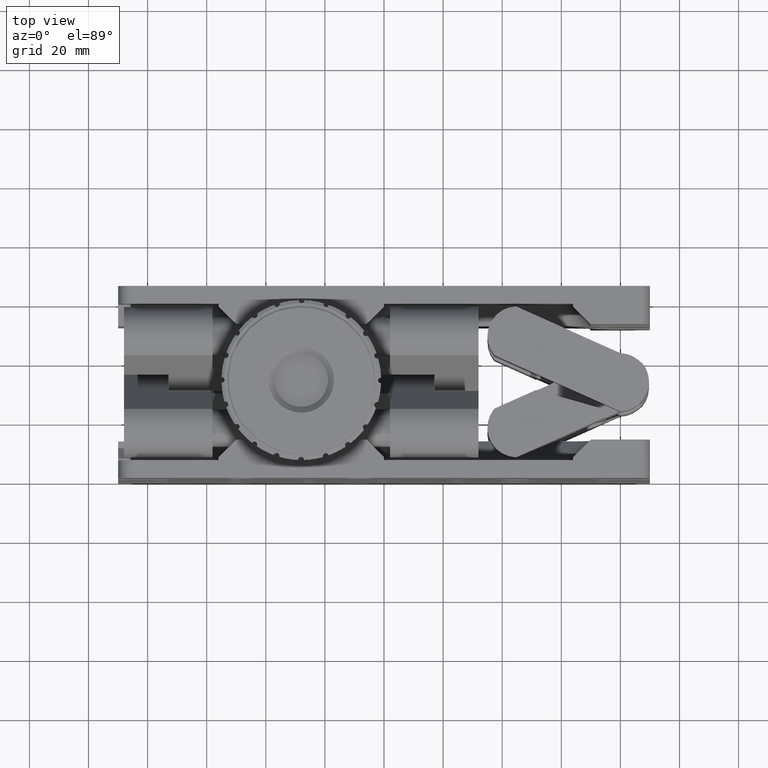
[diagram: clean part render]
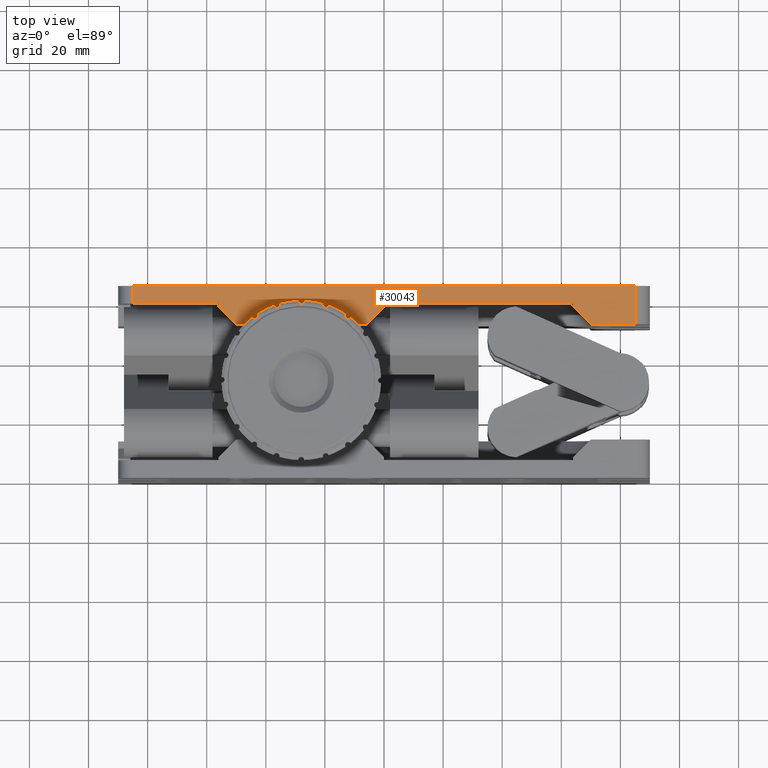
[diagram: same view with one face highlighted and labeled with its STEP entity id]
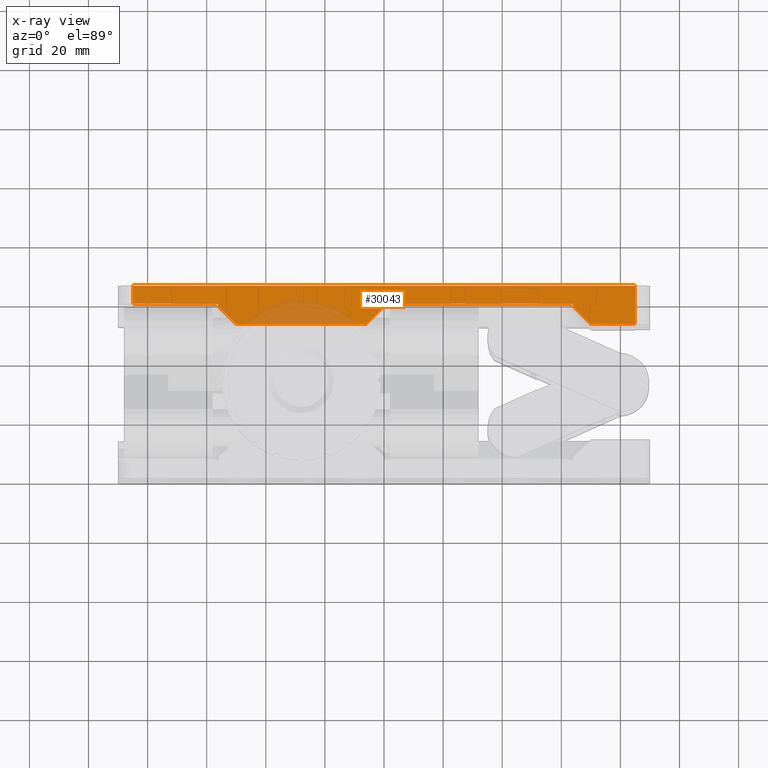
[diagram: x-ray of the same camera — body ghosted, the highlighted face saturated]
A machine part, top view. The second image highlights one B-rep face of the part: STEP entity #30043.
The next image is the same camera in x-ray: the body ghosted, the highlighted face saturated — about 14% of this face is hidden behind the body in this view.
In plain terms, the highlighted planar face has unit normal (-0, -0, -1).
Its self-contained STEP definition (entity closure, byte-faithful):
#239 = VECTOR ( 'NONE', #9025, 1000.000000000000000 ) ;
#748 = VECTOR ( 'NONE', #31106, 1000.000000000000000 ) ;
#963 = EDGE_LOOP ( 'NONE', ( #61446, #8612, #39062, #28126, #61381, #48641, #47163, #1784, #13380, #44782, #51101, #24269, #35780 ) ) ;
#1177 = CARTESIAN_POINT ( 'NONE',  ( 84.99999999999994300, 52.00000000000000700, 59.99999999999984400 ) ) ;
#1784 = ORIENTED_EDGE ( 'NONE', *, *, #13980, .F. ) ;
#2953 = VERTEX_POINT ( 'NONE', #1177 ) ;
#3941 = LINE ( 'NONE', #21134, #34423 ) ;
#3943 = VECTOR ( 'NONE', #40256, 1000.000000000000000 ) ;
#4068 = LINE ( 'NONE', #38791, #51248 ) ;
#4636 = LINE ( 'NONE', #29081, #39622 ) ;
#5387 = VERTEX_POINT ( 'NONE', #14525 ) ;
#5450 = CARTESIAN_POINT ( 'NONE',  ( 63.99999999999992900, 59.00000000000000700, 59.99999999999986500 ) ) ;
#5475 = EDGE_CURVE ( 'NONE', #60004, #26138, #3941, .T. ) ;
#7445 = CARTESIAN_POINT ( 'NONE',  ( 70.00000000000000000, 52.00000000000000700, 59.99999999999985100 ) ) ;
#8612 = ORIENTED_EDGE ( 'NONE', *, *, #34870, .T. ) ;
#9025 = DIRECTION ( 'NONE',  ( -1.000000000000000000, 2.168404344970952500E-019, -8.163404592832018200E-016 ) ) ;
#9397 = DIRECTION ( 'NONE',  ( -1.000000000000000000, 2.168404344971019900E-019, 1.541976423090491700E-016 ) ) ;
#10535 = VERTEX_POINT ( 'NONE', #38683 ) ;
#10992 = LINE ( 'NONE', #44580, #15546 ) ;
#10997 = VERTEX_POINT ( 'NONE', #48931 ) ;
#11834 = LINE ( 'NONE', #38298, #18712 ) ;
#12138 = LINE ( 'NONE', #59878, #748 ) ;
#12387 = EDGE_CURVE ( 'NONE', #55742, #58027, #4636, .T. ) ;
#13359 = CARTESIAN_POINT ( 'NONE',  ( -84.99999999999998600, 59.00000000000000700, 59.99999999999983700 ) ) ;
#13380 = ORIENTED_EDGE ( 'NONE', *, *, #41794, .F. ) ;
#13980 = EDGE_CURVE ( 'NONE', #28929, #36897, #12138, .T. ) ;
#14183 = DIRECTION ( 'NONE',  ( 0.7071067811865474600, -0.7071067811865474600, 4.906538933386765800E-018 ) ) ;
#14525 = CARTESIAN_POINT ( 'NONE',  ( 63.99999999999992900, 59.00000000000000700, 59.99999999999986500 ) ) ;
#14996 = DIRECTION ( 'NONE',  ( 2.168404344971008900E-019, 1.000000000000000000, -6.938893903907193700E-018 ) ) ;
#15313 = LINE ( 'NONE', #46558, #32913 ) ;
#15546 = VECTOR ( 'NONE', #14996, 1000.000000000000000 ) ;
#16172 = DIRECTION ( 'NONE',  ( -1.000000000000000000, 2.168404344971008900E-019, 1.805559322863017600E-035 ) ) ;
#18712 = VECTOR ( 'NONE', #47401, 1000.000000000000000 ) ;
#19042 = CARTESIAN_POINT ( 'NONE',  ( 64.00000000000001400, 58.00000000000000700, 59.99999999999985100 ) ) ;
#19459 = EDGE_CURVE ( 'NONE', #10997, #32844, #52024, .T. ) ;
#20135 = DIRECTION ( 'NONE',  ( -2.168404344971008900E-019, -1.000000000000000000, 6.938893903907193700E-018 ) ) ;
#20228 = EDGE_CURVE ( 'NONE', #10535, #58027, #15313, .T. ) ;
#20893 = CARTESIAN_POINT ( 'NONE',  ( 63.99999999999992900, 59.00000000000000700, 59.99999999999986500 ) ) ;
#21134 = CARTESIAN_POINT ( 'NONE',  ( 64.00000000000001400, 58.00000000000000700, 59.99999999999985100 ) ) ;
#24269 = ORIENTED_EDGE ( 'NONE', *, *, #44679, .F. ) ;
#25153 = DIRECTION ( 'NONE',  ( 0.7071067811865466800, -0.7071067811865483500, 4.906538933386772000E-018 ) ) ;
#25651 = LINE ( 'NONE', #37983, #63026 ) ;
#26138 = VERTEX_POINT ( 'NONE', #7445 ) ;
#26515 = PLANE ( 'NONE',  #57868 ) ;
#28109 = DIRECTION ( 'NONE',  ( -2.168404344971008900E-019, -1.000000000000000000, 6.938893903907193700E-018 ) ) ;
#28126 = ORIENTED_EDGE ( 'NONE', *, *, #31673, .T. ) ;
#28810 = FACE_OUTER_BOUND ( 'NONE', #963, .T. ) ;
#28929 = VERTEX_POINT ( 'NONE', #55310 ) ;
#29081 = CARTESIAN_POINT ( 'NONE',  ( -49.99999999999997900, 52.00000000000000700, 59.99999999999985100 ) ) ;
#30043 = ADVANCED_FACE ( 'NONE', ( #28810 ), #26515, .F. ) ;
#30664 = CARTESIAN_POINT ( 'NONE',  ( -84.99999999999998600, 52.00000000000000700, 59.99999999999987200 ) ) ;
#31106 = DIRECTION ( 'NONE',  ( -2.168404344971008900E-019, -1.000000000000000000, 6.938893903907193700E-018 ) ) ;
#31494 = VECTOR ( 'NONE', #16172, 1000.000000000000000 ) ;
#31673 = EDGE_CURVE ( 'NONE', #10997, #55742, #38564, .T. ) ;
#32502 = CARTESIAN_POINT ( 'NONE',  ( -55.99999999999997900, 58.00000000000000000, 59.99999999999985100 ) ) ;
#32844 = VERTEX_POINT ( 'NONE', #13359 ) ;
#32913 = VECTOR ( 'NONE', #45914, 1000.000000000000000 ) ;
#32981 = CARTESIAN_POINT ( 'NONE',  ( -84.99999999999998600, 65.00000000000000000, 59.99999999999987200 ) ) ;
#33877 = LINE ( 'NONE', #5450, #38479 ) ;
#34423 = VECTOR ( 'NONE', #25153, 1000.000000000000000 ) ;
#34870 = EDGE_CURVE ( 'NONE', #36031, #32844, #48846, .T. ) ;
#35350 = LINE ( 'NONE', #20893, #31494 ) ;
#35780 = ORIENTED_EDGE ( 'NONE', *, *, #46929, .T. ) ;
#36031 = VERTEX_POINT ( 'NONE', #32981 ) ;
#36146 = DIRECTION ( 'NONE',  ( -1.541976423090491700E-016, -6.938893903907159000E-018, -1.000000000000000000 ) ) ;
#36897 = VERTEX_POINT ( 'NONE', #41136 ) ;
#37733 = VERTEX_POINT ( 'NONE', #51737 ) ;
#37832 = VECTOR ( 'NONE', #28109, 1000.000000000000000 ) ;
#37983 = CARTESIAN_POINT ( 'NONE',  ( -90.00000000000000000, 65.00000000000000000, 59.99999999999987200 ) ) ;
#38298 = CARTESIAN_POINT ( 'NONE',  ( 1.772960017939621800E-014, 58.00000000000000700, 59.99999999999985800 ) ) ;
#38415 = EDGE_CURVE ( 'NONE', #36897, #10535, #11834, .T. ) ;
#38479 = VECTOR ( 'NONE', #20135, 1000.000000000000000 ) ;
#38564 = LINE ( 'NONE', #47272, #37832 ) ;
#38683 = CARTESIAN_POINT ( 'NONE',  ( -5.999999999999974200, 52.00000000000000700, 59.99999999999986500 ) ) ;
#38791 = CARTESIAN_POINT ( 'NONE',  ( -90.00000000000000000, 52.00000000000000700, 59.99999999999987200 ) ) ;
#39062 = ORIENTED_EDGE ( 'NONE', *, *, #19459, .F. ) ;
#39622 = VECTOR ( 'NONE', #14183, 1000.000000000000100 ) ;
#40256 = DIRECTION ( 'NONE',  ( -2.168404344971008900E-019, -1.000000000000000000, 6.938893903907193700E-018 ) ) ;
#40616 = DIRECTION ( 'NONE',  ( 1.000000000000000000, -2.168404344971019500E-019, -1.541976423090491700E-016 ) ) ;
#41136 = CARTESIAN_POINT ( 'NONE',  ( 1.772960017939621800E-014, 58.00000000000000700, 59.99999999999985800 ) ) ;
#41794 = EDGE_CURVE ( 'NONE', #5387, #28929, #35350, .T. ) ;
#44580 = CARTESIAN_POINT ( 'NONE',  ( 84.99999999999998600, 52.00000000000000700, 59.99999999999984400 ) ) ;
#44679 = EDGE_CURVE ( 'NONE', #2953, #26138, #4068, .T. ) ;
#44782 = ORIENTED_EDGE ( 'NONE', *, *, #46993, .T. ) ;
#45914 = DIRECTION ( 'NONE',  ( -1.000000000000000000, 2.168404344971019900E-019, 1.541976423090491700E-016 ) ) ;
#46558 = CARTESIAN_POINT ( 'NONE',  ( -90.00000000000000000, 52.00000000000000700, 59.99999999999987200 ) ) ;
#46929 = EDGE_CURVE ( 'NONE', #2953, #37733, #10992, .T. ) ;
#46993 = EDGE_CURVE ( 'NONE', #5387, #60004, #33877, .T. ) ;
#47163 = ORIENTED_EDGE ( 'NONE', *, *, #38415, .F. ) ;
#47272 = CARTESIAN_POINT ( 'NONE',  ( -55.99999999999999300, 59.00000000000000700, 59.99999999999985800 ) ) ;
#47401 = DIRECTION ( 'NONE',  ( -0.7071067811865466800, -0.7071067811865483500, 7.532017917821468000E-017 ) ) ;
#47561 = CARTESIAN_POINT ( 'NONE',  ( -90.00000000000000000, 59.00000000000000700, 59.99999999999982900 ) ) ;
#48641 = ORIENTED_EDGE ( 'NONE', *, *, #20228, .F. ) ;
#48846 = LINE ( 'NONE', #30664, #3943 ) ;
#48931 = CARTESIAN_POINT ( 'NONE',  ( -55.99999999999999300, 59.00000000000000700, 59.99999999999985800 ) ) ;
#51101 = ORIENTED_EDGE ( 'NONE', *, *, #5475, .T. ) ;
#51248 = VECTOR ( 'NONE', #52599, 1000.000000000000000 ) ;
#51737 = CARTESIAN_POINT ( 'NONE',  ( 84.99999999999994300, 65.00000000000000000, 59.99999999999984400 ) ) ;
#52009 = CARTESIAN_POINT ( 'NONE',  ( -49.99999999999997900, 52.00000000000000700, 59.99999999999985100 ) ) ;
#52024 = LINE ( 'NONE', #47561, #239 ) ;
#52599 = DIRECTION ( 'NONE',  ( -1.000000000000000000, 2.168404344971019900E-019, 1.541976423090491700E-016 ) ) ;
#55310 = CARTESIAN_POINT ( 'NONE',  ( -5.110708747197246600E-015, 59.00000000000000700, 59.99999999999986500 ) ) ;
#55742 = VERTEX_POINT ( 'NONE', #32502 ) ;
#57868 = AXIS2_PLACEMENT_3D ( 'NONE', #60204, #36146, #40616 ) ;
#58027 = VERTEX_POINT ( 'NONE', #52009 ) ;
#59878 = CARTESIAN_POINT ( 'NONE',  ( -5.110708747197246600E-015, 59.00000000000000700, 59.99999999999986500 ) ) ;
#60004 = VERTEX_POINT ( 'NONE', #19042 ) ;
#60204 = CARTESIAN_POINT ( 'NONE',  ( -90.00000000000000000, 52.00000000000000700, 59.99999999999987200 ) ) ;
#61381 = ORIENTED_EDGE ( 'NONE', *, *, #12387, .T. ) ;
#61446 = ORIENTED_EDGE ( 'NONE', *, *, #61901, .T. ) ;
#61901 = EDGE_CURVE ( 'NONE', #37733, #36031, #25651, .T. ) ;
#63026 = VECTOR ( 'NONE', #9397, 1000.000000000000000 ) ;